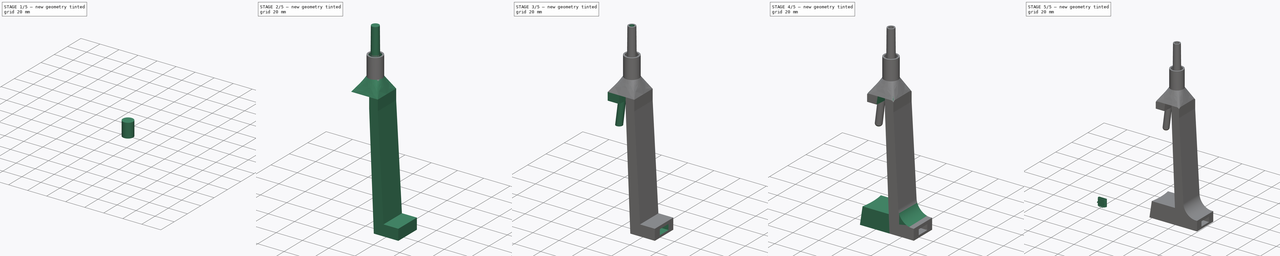
[diagram: build sequence overview — one tinted view per stage of 5, left to right]
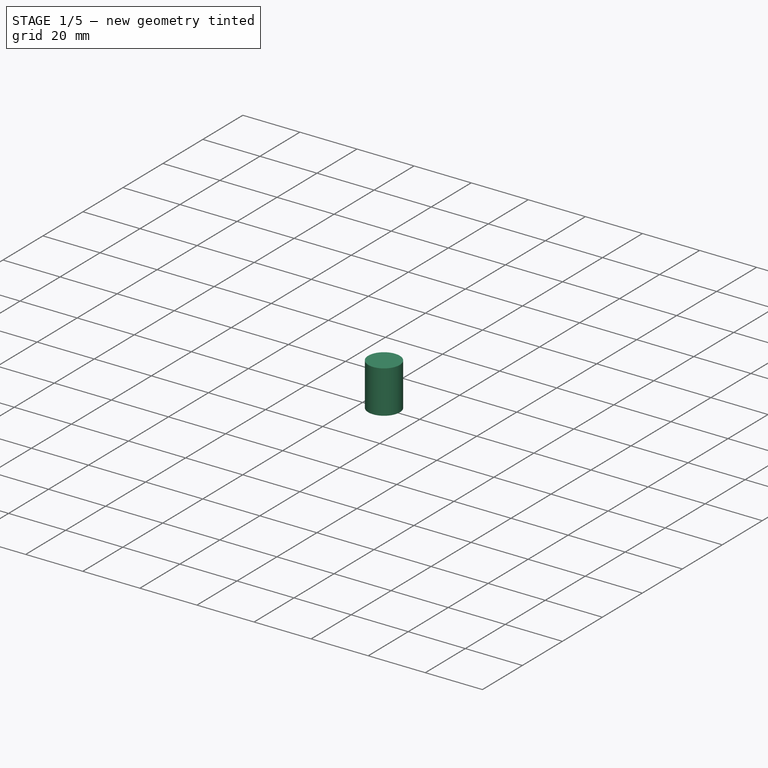
[diagram: stage 1 of 5 — iso view after this stage's code; geometry added in this stage tinted green]
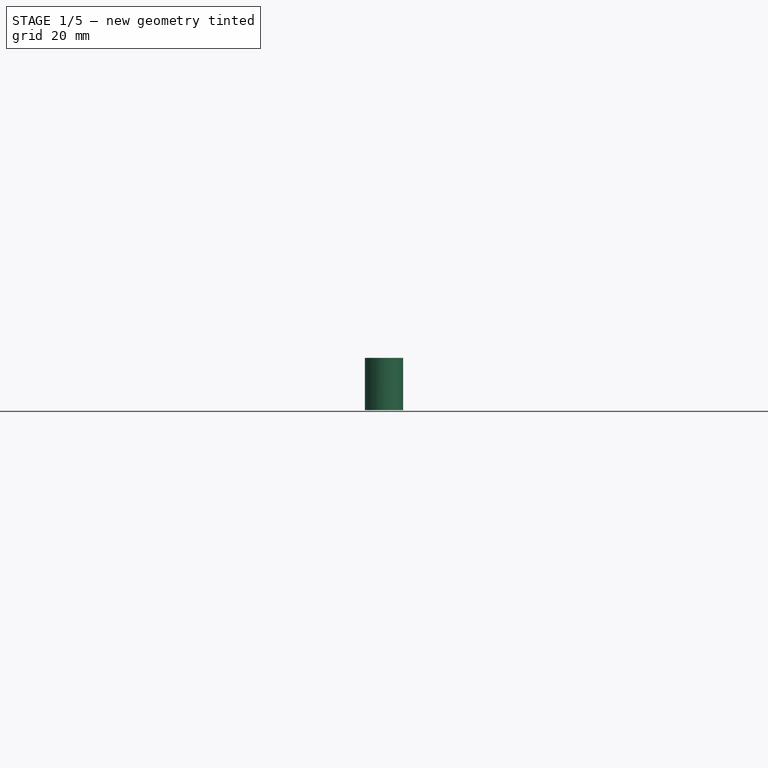
[diagram: stage 1 of 5 — front view after this stage's code; geometry added in this stage tinted green]
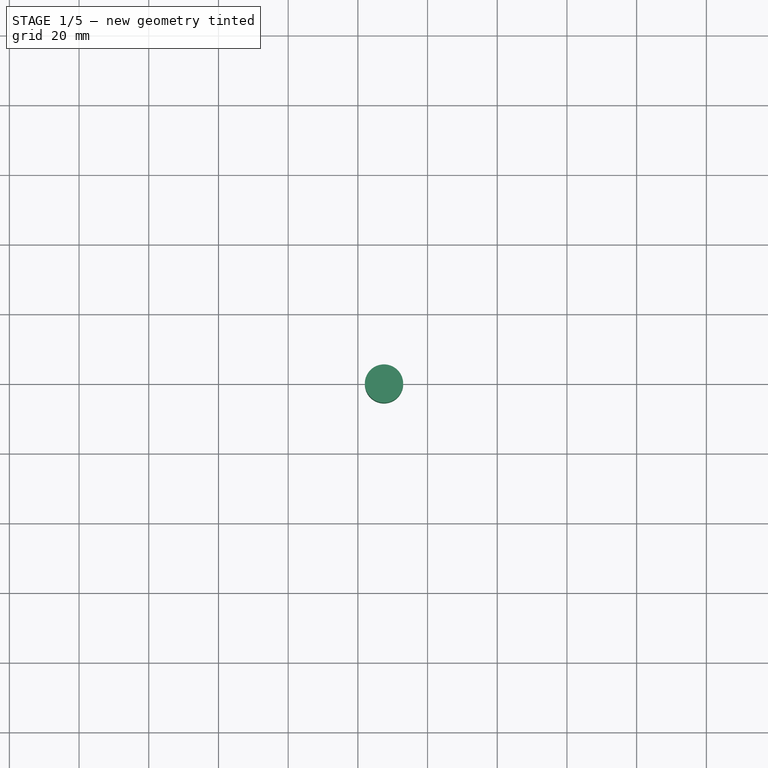
[diagram: stage 1 of 5 — top view after this stage's code; geometry added in this stage tinted green]
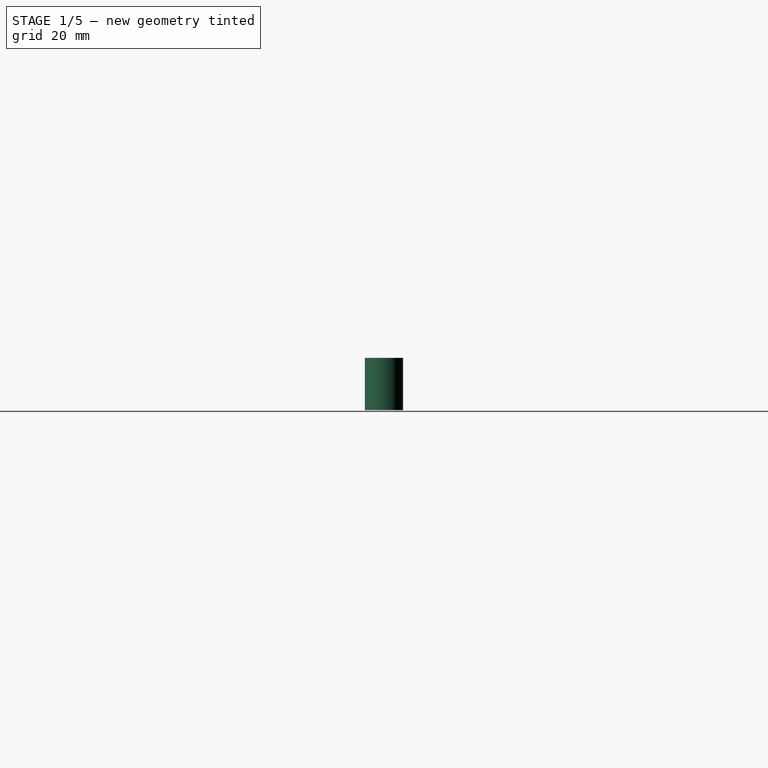
[diagram: stage 1 of 5 — right view after this stage's code; geometry added in this stage tinted green]
FCSTD DOCUMENT  (FreeCAD 0.19R19056 (Git))
Label: Supporto-B-Vaso13
License: All rights reserved
LicenseURL: http://en.wikipedia.org/wiki/All_rights_reserved
objects: Sketcher::SketchObject×32, PartDesign::Pad×12, PartDesign::AdditiveLoft×4, PartDesign::Body×3, PartDesign::Fillet×3, PartDesign::SubtractiveLoft×2, PartDesign::Pocket×2, PartDesign::SubtractivePipe×2, PartDesign::ShapeBinder×1, PartDesign::Thickness×1, PartDesign::AdditivePipe×1
note: 86 computed .brp shape members not serialized (recipe doc carries the construction recipe); baked Part::Feature solids carry a one-line shape summary decoded from their .brp

FEATURE [Sketcher::SketchObject] Sketch
  MapMode = 5
  Support = -> [XY_Plane]
  sketch-geometry (2):
    g0: Circle CenterX=0 CenterY=0 CenterZ=0 NormalX=0 NormalY=0 NormalZ=1 AngleXU=0 Radius=50
    g1: Circle CenterX=0 CenterY=0 CenterZ=0 NormalX=0 NormalY=0 NormalZ=1 AngleXU=0 Radius=50.5
  constraints (4):
    c: Coincident(g0,g-1)
    c: Coincident(g1,g0)
    c: Diameter(g0) = 100
    c: Diameter(g1) = 101
FEATURE [Sketcher::SketchObject] Sketch001
  AttachmentOffset = pos=(0,0,100) rot=(0,0,1;0rad)
  MapMode = 5
  Placement = pos=(0,0,100) rot=(0,0,1;0rad)
  Support = -> [XY_Plane]
  sketch-geometry (2):
    g0: Circle CenterX=0 CenterY=0 CenterZ=0 NormalX=0 NormalY=0 NormalZ=1 AngleXU=0 Radius=65
    g1: Circle CenterX=0 CenterY=0 CenterZ=0 NormalX=0 NormalY=0 NormalZ=1 AngleXU=0 Radius=65.5
  constraints (4):
    c: Coincident(g0,g-1)
    c: Coincident(g1,g0)
    c: Diameter(g0) = 130
    c: Diameter(g1) = 131
FEATURE [PartDesign::AdditiveLoft] AdditiveLoft
  Closed = false
  Profile = -> Sketch
  Ruled = false
  Sections = -> [Sketch001]
FEATURE [Sketcher::SketchObject] Sketch002
  MapMode = 5
  Placement = pos=(0,0,0) rot=(1,0,0;3.14159rad)
  Support = -> [AdditiveLoft]
  sketch-geometry (1):
    g0: Circle CenterX=0 CenterY=0 CenterZ=0 NormalX=0 NormalY=0 NormalZ=1 AngleXU=0 Radius=50.5
  constraints (2):
    c: Coincident(g0,g-1)
    c: Diameter(g0) = 101
FEATURE [PartDesign::Pad] Pad
  BaseFeature = -> AdditiveLoft
  Length = 1
  Length2 = 100
  Profile = -> Sketch002
  Type = 0
FEATURE [Sketcher::SketchObject] Sketch003
  MapMode = 5
  Placement = pos=(0,0,100) rot=(0,0,1;0rad)
  Support = -> [Pad]
  sketch-geometry (2):
    g0: Circle CenterX=0 CenterY=0 CenterZ=0 NormalX=0 NormalY=0 NormalZ=1 AngleXU=0 Radius=65
    g1: Circle CenterX=0 CenterY=0 CenterZ=0 NormalX=0 NormalY=0 NormalZ=1 AngleXU=0 Radius=70.5
  constraints (3):
    c: Coincident(g0,g-1)
    c: Diameter(g0) = 130
    c: Diameter(g1) = 141
FEATURE [PartDesign::Pad] Pad001
  BaseFeature = -> Pad
  Length = 1
  Length2 = 100
  Profile = -> Sketch003
  Reversed = true
  Type = 0
FEATURE [Sketcher::SketchObject] Sketch004
  MapMode = 5
  Placement = pos=(0,0,99) rot=(1,0,0;3.14159rad)
  Support = -> [Pad001]
  sketch-geometry (2):
    g0: Circle CenterX=0 CenterY=0 CenterZ=0 NormalX=0 NormalY=0 NormalZ=1 AngleXU=0 Radius=70.5
    g1: Circle CenterX=0 CenterY=0 CenterZ=0 NormalX=0 NormalY=0 NormalZ=1 AngleXU=0 Radius=70
  constraints (4):
    c: Coincident(g0,g-1)
    c: Diameter(g0) = 141
    c: Coincident(g1,g0)
    c: Diameter(g1) = 140
FEATURE [PartDesign::Pad] Pad002
  BaseFeature = -> Pad001
  Length = 5
  Length2 = 100
  Profile = -> Sketch004
  Type = 0
FEATURE [PartDesign::Body] Body  label="Vaso13"
  Group = -> [Sketch,Sketch001,AdditiveLoft,Sketch002,Pad,Sketch003,Pad001,Sketch004,Pad002]
  Origin = -> Origin
  Tip = -> Pad002
FEATURE [PartDesign::ShapeBinder] ShapeBinder
  Support = -> [Pad002]
  TraceSupport = false
FEATURE [Sketcher::SketchObject] Sketch005
  AttachmentOffset = pos=(0,0,10) rot=(0,0,1;0rad)
  MapMode = 5
  Placement = pos=(0,0,110) rot=(0,0,1;0rad)
  Support = -> [ShapeBinder]
  sketch-geometry (1):
    g0: Circle CenterX=67.5 CenterY=0 CenterZ=0 NormalX=0 NormalY=0 NormalZ=1 AngleXU=0 Radius=5.5
  constraints (3):
    c: PointOnObject(g0,g-1)
    c: DistanceX(g-1,g0) = 67.5
    c: Diameter(g0) = 11
FEATURE [PartDesign::Pad] Pad003
  Length = 15
  Length2 = 100
  Profile = -> Sketch005
  Type = 0
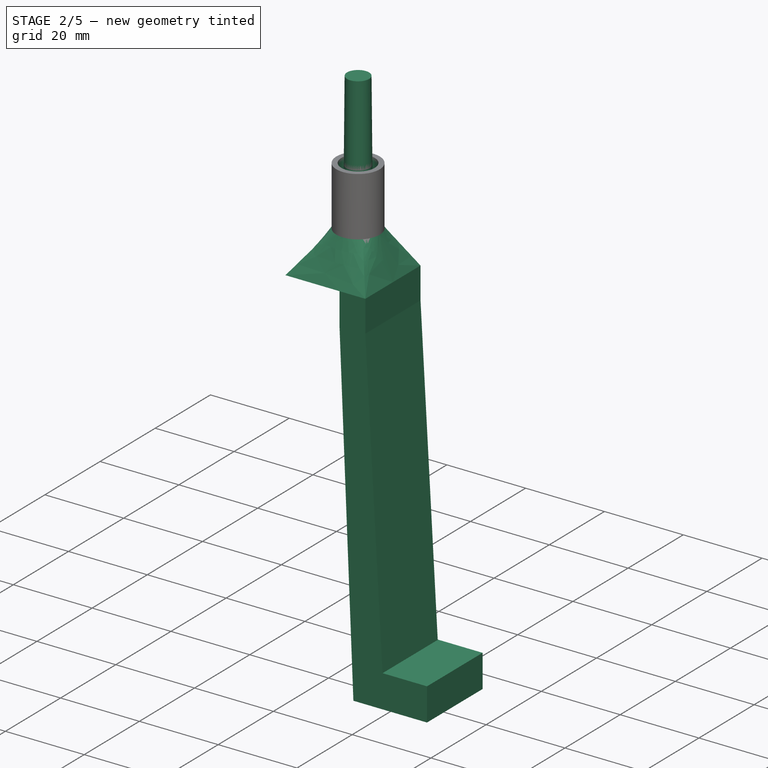
[diagram: stage 2 of 5 — iso view after this stage's code; geometry added in this stage tinted green]
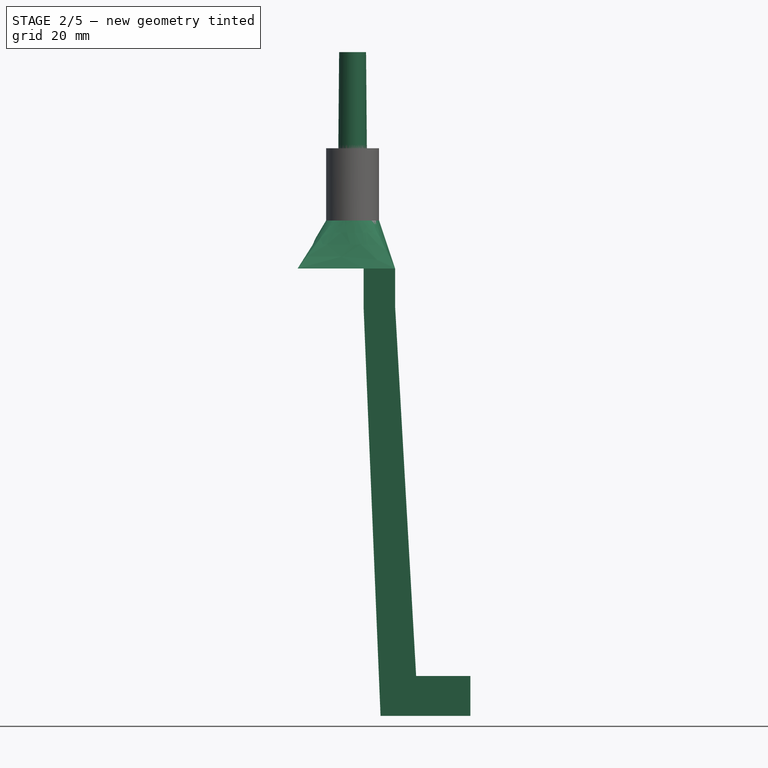
[diagram: stage 2 of 5 — front view after this stage's code; geometry added in this stage tinted green]
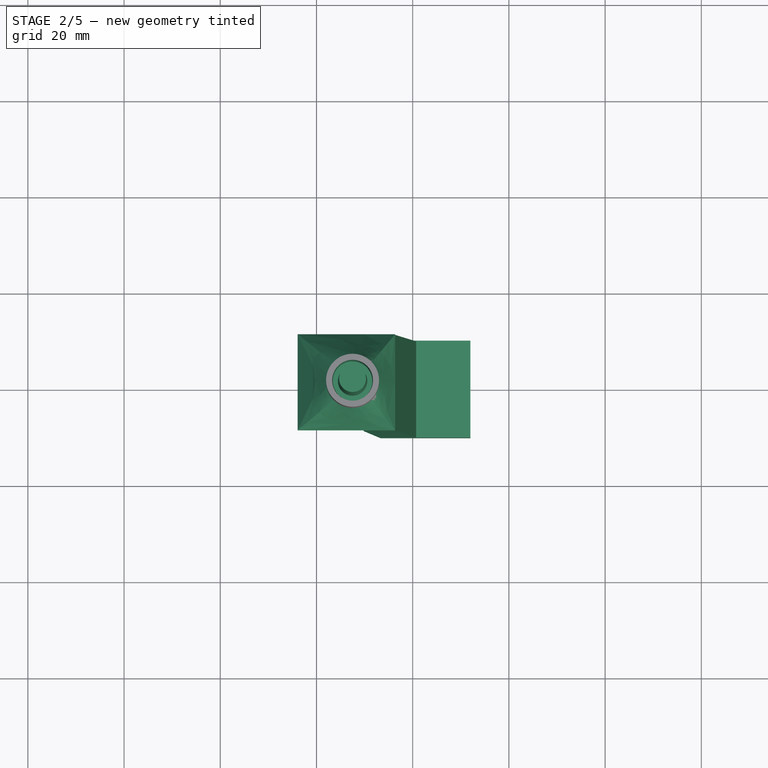
[diagram: stage 2 of 5 — top view after this stage's code; geometry added in this stage tinted green]
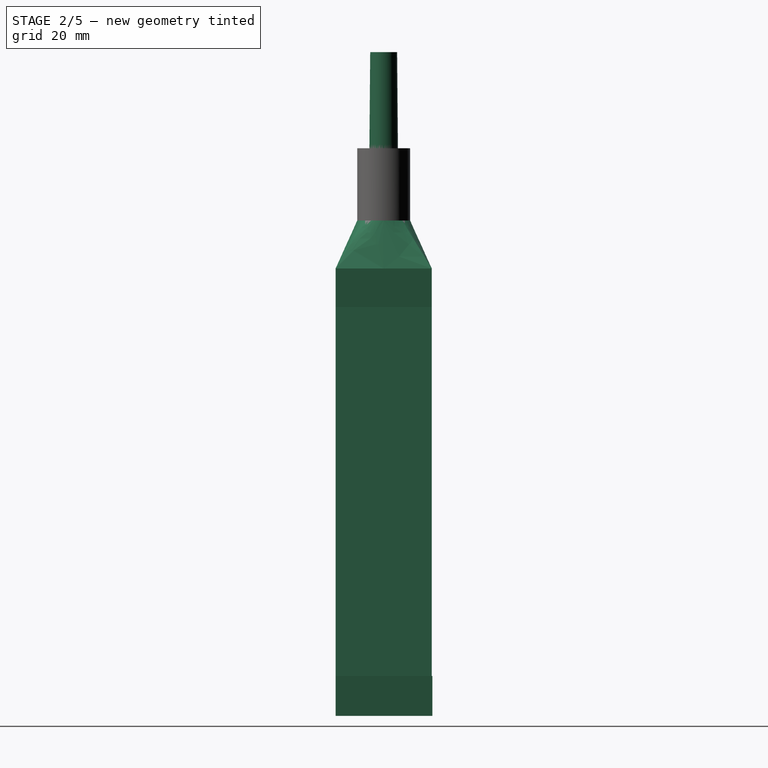
[diagram: stage 2 of 5 — right view after this stage's code; geometry added in this stage tinted green]
FEATURE [Sketcher::SketchObject] Sketch006
  ExternalGeometry = -> [Pad003]
  MapMode = 5
  Placement = pos=(0,0,125) rot=(0,0,1;0rad)
  Support = -> [Pad003]
  sketch-geometry (1):
    g0: Circle CenterX=67.5 CenterY=0 CenterZ=0 NormalX=0 NormalY=0 NormalZ=1 AngleXU=0 Radius=4.25
  constraints (2):
    c: Coincident(g0,g-3)
    c: Diameter(g0) = 8.5
FEATURE [Sketcher::SketchObject] Sketch007
  AttachmentOffset = pos=(0,0,-10) rot=(0,0,1;0rad)
  ExternalGeometry = -> [Pad003]
  MapMode = 5
  Placement = pos=(0,0,115) rot=(0,0,1;0rad)
  Support = -> [Pad003]
  sketch-geometry (1):
    g0: Circle CenterX=67.5 CenterY=0 CenterZ=0 NormalX=0 NormalY=0 NormalZ=1 AngleXU=0 Radius=4.1
  constraints (2):
    c: Coincident(g0,g-3)
    c: Diameter(g0) = 8.2
FEATURE [PartDesign::SubtractiveLoft] SubtractiveLoft
  BaseFeature = -> Pad003
  Closed = false
  Profile = -> Sketch007
  Ruled = false
  Sections = -> [Sketch006]
FEATURE [Sketcher::SketchObject] Sketch008
  ExternalGeometry = -> [SubtractiveLoft]
  MapMode = 5
  Placement = pos=(0,0,115) rot=(0,0,1;0rad)
  Support = -> [SubtractiveLoft]
  sketch-geometry (1):
    g0: Circle CenterX=67.5 CenterY=0 CenterZ=0 NormalX=0 NormalY=0 NormalZ=1 AngleXU=0 Radius=3.05
  constraints (2):
    c: Coincident(g0,g-3)
    c: Diameter(g0) = 6.1
FEATURE [Sketcher::SketchObject] Sketch009
  AttachmentOffset = pos=(0,0,30) rot=(0,0,1;0rad)
  ExternalGeometry = -> [SubtractiveLoft]
  MapMode = 5
  Placement = pos=(0,0,145) rot=(0,0,1;0rad)
  Support = -> [SubtractiveLoft]
  sketch-geometry (1):
    g0: Circle CenterX=67.5 CenterY=0 CenterZ=0 NormalX=0 NormalY=0 NormalZ=1 AngleXU=0 Radius=2.8
  constraints (2):
    c: Coincident(g0,g-3)
    c: Diameter(g0) = 5.6
FEATURE [PartDesign::AdditiveLoft] AdditiveLoft001
  BaseFeature = -> SubtractiveLoft
  Closed = false
  Profile = -> Sketch008
  Ruled = false
  Sections = -> [Sketch009]
FEATURE [Sketcher::SketchObject] Sketch010
  ExternalGeometry = -> [AdditiveLoft001]
  MapMode = 5
  Placement = pos=(0,0,145) rot=(0,0,1;0rad)
  Support = -> [AdditiveLoft001]
  sketch-geometry (1):
    g0: Circle CenterX=67.5 CenterY=0 CenterZ=0 NormalX=0 NormalY=0 NormalZ=1 AngleXU=0 Radius=1.75
  constraints (2):
    c: Coincident(g0,g-3)
    c: Diameter(g0) = 3.5
FEATURE [Sketcher::SketchObject] Sketch011
  MapMode = 5
  Placement = pos=(0,0,100) rot=(0,0,1;0rad)
  Support = -> [ShapeBinder]
  sketch-geometry (5):
    g0: LineSegment StartX=56.0678 StartY=10 StartZ=0 EndX=76.3477 EndY=10 EndZ=0
    g1: LineSegment StartX=76.3477 StartY=10 StartZ=0 EndX=76.3477 EndY=-10 EndZ=0
    g2: LineSegment StartX=76.3477 StartY=-10 StartZ=0 EndX=56.0678 EndY=-10 EndZ=0
    g3: LineSegment StartX=56.0678 StartY=-10 StartZ=0 EndX=56.0678 EndY=10 EndZ=0
    g4: GeomPoint X=56.0678 Y=-1e-16 Z=0
  constraints (11):
    c: Coincident(g0,g1)
    c: Coincident(g1,g2)
    c: Coincident(g2,g3)
    c: Coincident(g3,g0)
    c: Horizontal(g0)
    c: Horizontal(g2)
    c: Vertical(g1)
    c: Vertical(g3)
    c: DistanceY(g1,g1) = 20
    c: PointOnObject(g4,g-1)
    c: Symmetric(g2,g0,g4)
FEATURE [Sketcher::SketchObject] Sketch012
  ExternalGeometry = -> [AdditiveLoft001]
  MapMode = 5
  Placement = pos=(0,0,110) rot=(1,0,0;3.14159rad)
  Support = -> [AdditiveLoft001]
  sketch-geometry (1):
    g0: Circle CenterX=67.5 CenterY=0 CenterZ=0 NormalX=0 NormalY=0 NormalZ=1 AngleXU=0 Radius=5.5
  constraints (2):
    c: Coincident(g0,g-3)
    c: Equal(g0,g-3)
FEATURE [PartDesign::AdditiveLoft] AdditiveLoft002
  BaseFeature = -> AdditiveLoft001
  Closed = false
  Profile = -> Sketch012
  Ruled = false
  Sections = -> [Sketch011]
FEATURE [PartDesign::Body] Body002  label="MicroUSB"
  Group = -> [Sketch015,Pad004,Thickness,Sketch016,Pad005,Sketch017,Pad006,Sketch018,Pad007]
  Origin = -> Origin002
  Placement = pos=(86,-3,12) rot=(0.57735,0.57735,0.57735;2.0944rad)
  Tip = -> Pad007
FEATURE [Sketcher::SketchObject] Sketch019
  ExternalGeometry = -> [AdditiveLoft002,ShapeBinder]
  MapMode = 5
  Placement = pos=(0,0,100) rot=(1,0,0;3.14159rad)
  Support = -> [AdditiveLoft002]
  sketch-geometry (4):
    g0: ArcOfCircle CenterX=0 CenterY=0 CenterZ=0 NormalX=0 NormalY=0 NormalZ=1 AngleXU=0 Radius=70.5 StartAngle=6.14086 EndAngle=6.42551
    g1: LineSegment StartX=69.7872 StartY=10 StartZ=0 EndX=76.3477 EndY=10 EndZ=0
    g2: LineSegment StartX=76.3477 StartY=10 StartZ=0 EndX=76.3477 EndY=-10 EndZ=0
    g3: LineSegment StartX=76.3477 StartY=-10 StartZ=0 EndX=69.7872 EndY=-10 EndZ=0
  constraints (10):
    c: Coincident(g0,g-1)
    c: PointOnObject(g0,g-5)
    c: PointOnObject(g0,g-4)
    c: PointOnObject(g0,g-3)
    c: Coincident(g0,g1)
    c: Coincident(g1,g2)
    c: Coincident(g2,g3)
    c: Coincident(g3,g0)
    c: Coincident(g1,g-3)
    c: Coincident(g-4,g2)
FEATURE [PartDesign::Pad] Pad008
  BaseFeature = -> AdditiveLoft002
  Length = 8
  Length2 = 100
  Profile = -> Sketch019
  Type = 0
FEATURE [Sketcher::SketchObject] Sketch020
  AttachmentOffset = pos=(-5,0,85) rot=(0,0,1;0rad)
  ExternalGeometry = -> [Pad008]
  MapMode = 5
  Placement = pos=(-5,0,7) rot=(1,0,0;3.14159rad)
  Support = -> [Pad008]
  sketch-geometry (6):
    g0: LineSegment StartX=78.3147 StartY=10 StartZ=0 EndX=86.1863 EndY=10 EndZ=0
    g1: LineSegment StartX=86.1863 StartY=10 StartZ=0 EndX=86.1863 EndY=-10 EndZ=0
    g2: LineSegment StartX=86.1863 StartY=-10 StartZ=0 EndX=78.3147 EndY=-10 EndZ=0
    g3: LineSegment StartX=78.3147 StartY=-10 StartZ=0 EndX=78.3147 EndY=10 EndZ=0
    g4: LineSegment [constr] StartX=81.3477 StartY=10 StartZ=0 EndX=78.3147 EndY=10 EndZ=0
    g5: LineSegment [constr] StartX=81.3477 StartY=-10 StartZ=0 EndX=78.3147 EndY=-10 EndZ=0
  constraints (14):
    c: Coincident(g0,g1)
    c: Coincident(g1,g2)
    c: Coincident(g2,g3)
    c: Coincident(g3,g0)
    c: Horizontal(g0)
    c: Horizontal(g2)
    c: Vertical(g1)
    c: Vertical(g3)
    c: Equal(g-5,g1)
    c: Coincident(g4,g-5)
    c: Coincident(g4,g0)
    c: Horizontal(g4)
    c: Coincident(g5,g-5)
    c: Coincident(g5,g2)
FEATURE [Sketcher::SketchObject] Sketch021
  ExternalGeometry = -> [Pad008,ShapeBinder]
  MapMode = 5
  Placement = pos=(0,0,92) rot=(1,0,0;3.14159rad)
  Support = -> [Pad008]
  sketch-geometry (4):
    g0: ArcOfCircle CenterX=0 CenterY=0 CenterZ=0 NormalX=0 NormalY=0 NormalZ=1 AngleXU=0 Radius=70.5 StartAngle=6.14086 EndAngle=6.42551
    g1: LineSegment StartX=69.7872 StartY=10 StartZ=0 EndX=76.3477 EndY=10 EndZ=0
    g2: LineSegment StartX=76.3477 StartY=10 StartZ=0 EndX=76.3477 EndY=-10 EndZ=0
    g3: LineSegment StartX=76.3477 StartY=-10 StartZ=0 EndX=69.7872 EndY=-10 EndZ=0
  constraints (10):
    c: Coincident(g0,g-1)
    c: PointOnObject(g0,g-5)
    c: PointOnObject(g0,g-4)
    c: Coincident(g0,g1)
    c: Coincident(g1,g2)
    c: Coincident(g2,g3)
    c: Coincident(g3,g0)
    c: PointOnObject(g0,g-3)
    c: Coincident(g-3,g1)
    c: Coincident(g-4,g2)
FEATURE [PartDesign::AdditiveLoft] AdditiveLoft003
  BaseFeature = -> Pad008
  Closed = false
  Profile = -> Sketch021
  Ruled = false
  Sections = -> [Sketch020]
FEATURE [Sketcher::SketchObject] Sketch022
  AttachmentOffset = pos=(0,0,80) rot=(0,0,1;0rad)
  ExternalGeometry = -> [AdditiveLoft003]
  MapMode = 5
  Placement = pos=(80,-1.78e-14,1.78e-14) rot=(0.57735,0.57735,0.57735;2.0944rad)
  Support = -> [YZ_Plane001]
  sketch-geometry (4):
    g0: LineSegment StartX=-10 StartY=7 StartZ=0 EndX=10.1356 EndY=7 EndZ=0
    g1: LineSegment StartX=10.1356 StartY=7 StartZ=0 EndX=10.1356 EndY=15.3041 EndZ=0
    g2: LineSegment StartX=10.1356 StartY=15.3041 StartZ=0 EndX=-10 EndY=15.3041 EndZ=0
    g3: LineSegment StartX=-10 StartY=15.3041 StartZ=0 EndX=-10 EndY=7 EndZ=0
  constraints (10):
    c: Coincident(g0,g1)
    c: Coincident(g1,g2)
    c: Coincident(g2,g3)
    c: Coincident(g3,g0)
    c: Horizontal(g0)
    c: Horizontal(g2)
    c: Vertical(g1)
    c: Vertical(g3)
    c: Coincident(g0,g-3)
    c: PointOnObject(g1,g-4)
FEATURE [PartDesign::Pad] Pad009
  BaseFeature = -> AdditiveLoft003
  Length = 12
  Length2 = 100
  Profile = -> Sketch022
  Type = 0
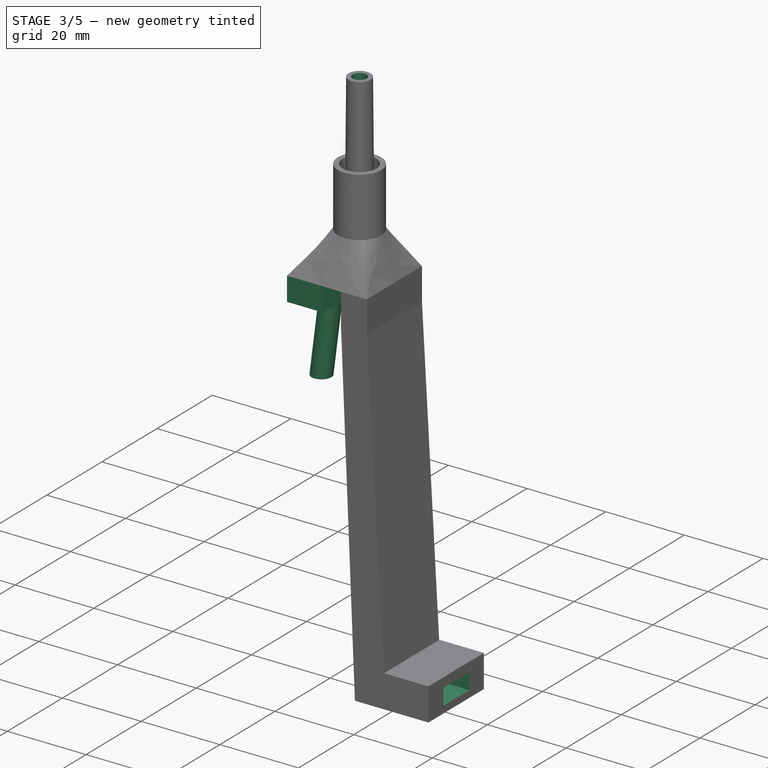
[diagram: stage 3 of 5 — iso view after this stage's code; geometry added in this stage tinted green]
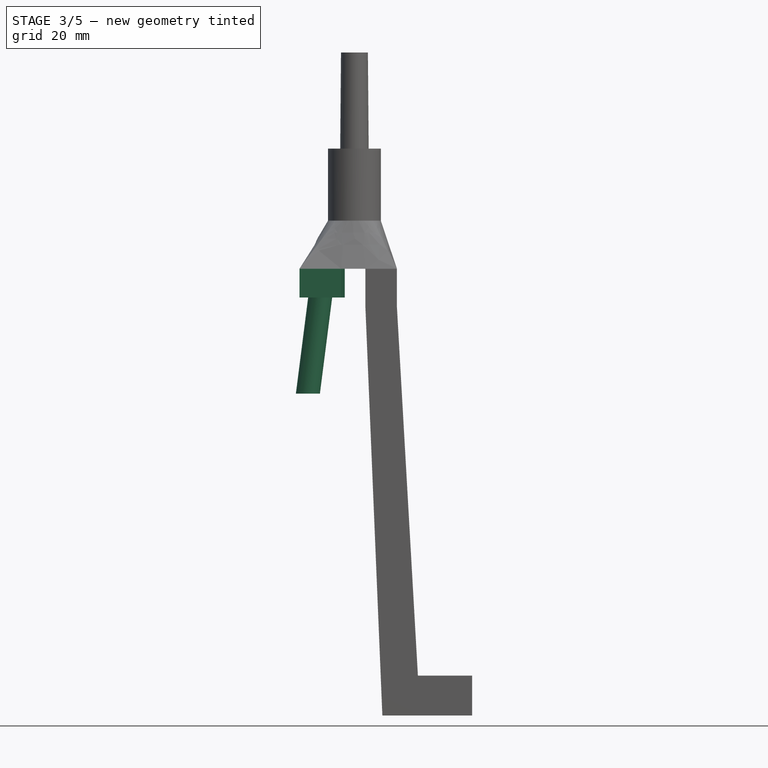
[diagram: stage 3 of 5 — front view after this stage's code; geometry added in this stage tinted green]
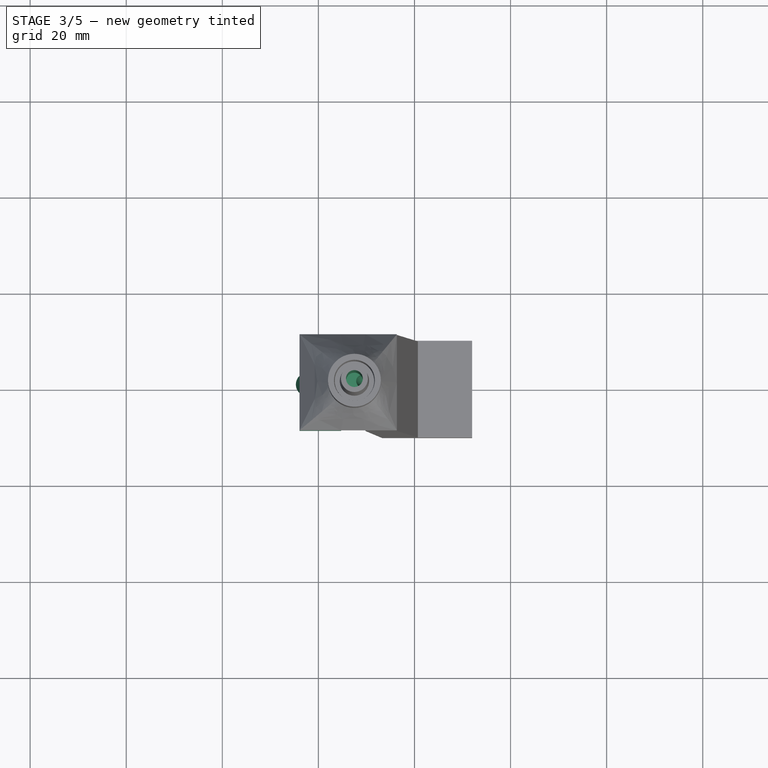
[diagram: stage 3 of 5 — top view after this stage's code; geometry added in this stage tinted green]
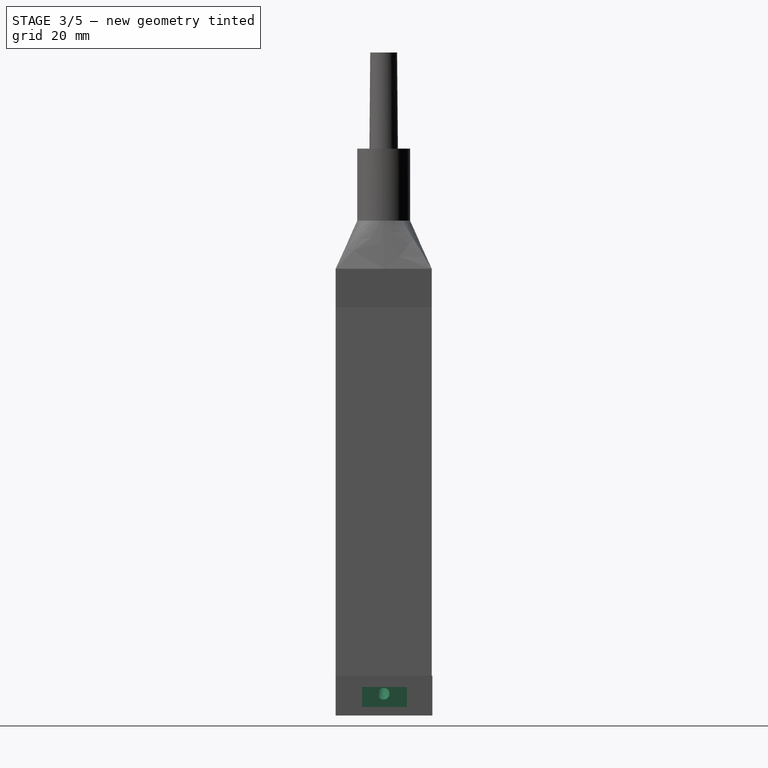
[diagram: stage 3 of 5 — right view after this stage's code; geometry added in this stage tinted green]
FEATURE [Sketcher::SketchObject] Sketch023
  MapMode = 5
  Placement = pos=(92,0,0) rot=(0.57735,0.57735,0.57735;2.0944rad)
  Support = -> [Pad009]
  sketch-geometry (4):
    g0: LineSegment StartX=-4.51885 StartY=12.9162 StartZ=0 EndX=4.86308 EndY=12.9162 EndZ=0
    g1: LineSegment StartX=4.86308 StartY=12.9162 StartZ=0 EndX=4.86308 EndY=8.76491 EndZ=0
    g2: LineSegment StartX=4.86308 StartY=8.76491 StartZ=0 EndX=-4.51885 EndY=8.76491 EndZ=0
    g3: LineSegment StartX=-4.51885 StartY=8.76491 StartZ=0 EndX=-4.51885 EndY=12.9162 EndZ=0
  constraints (8):
    c: Coincident(g0,g1)
    c: Coincident(g1,g2)
    c: Coincident(g2,g3)
    c: Coincident(g3,g0)
    c: Horizontal(g0)
    c: Horizontal(g2)
    c: Vertical(g1)
    c: Vertical(g3)
FEATURE [PartDesign::Pocket] Pocket
  BaseFeature = -> Pad009
  Length = 8
  Length2 = 100
  Profile = -> Sketch023
  Type = 0
FEATURE [Sketcher::SketchObject] Sketch024
  ExternalGeometry = -> [Pocket,ShapeBinder]
  MapMode = 5
  Placement = pos=(0,0,100) rot=(1,0,0;3.14159rad)
  Support = -> [Pocket]
  sketch-geometry (4):
    g0: LineSegment StartX=64.7321 StartY=10 StartZ=0 EndX=56.0678 EndY=10 EndZ=0
    g1: LineSegment StartX=56.0678 StartY=10 StartZ=0 EndX=56.0678 EndY=-10 EndZ=0
    g2: LineSegment StartX=56.0678 StartY=-10 StartZ=0 EndX=64.7321 EndY=-10 EndZ=0
    g3: ArcOfCircle CenterX=0 CenterY=0 CenterZ=0 NormalX=0 NormalY=0 NormalZ=1 AngleXU=0 Radius=65.5 StartAngle=6.12991 EndAngle=6.43646
  constraints (10):
    c: Coincident(g0,g1)
    c: Coincident(g1,g2)
    c: Coincident(g3,g-1)
    c: Coincident(g3,g0)
    c: Coincident(g3,g2)
    c: PointOnObject(g0,g-5)
    c: Coincident(g0,g-3)
    c: Coincident(g1,g-4)
    c: PointOnObject(g2,g-4)
    c: PointOnObject(g0,g-3)
FEATURE [PartDesign::Pad] Pad010
  BaseFeature = -> Pocket
  Length = 6
  Length2 = 100
  Profile = -> Sketch024
  Type = 0
FEATURE [Sketcher::SketchObject] Sketch025
  MapMode = 5
  Placement = pos=(0,0,94) rot=(1,0,0;3.14159rad)
  Support = -> [Pad010]
  sketch-geometry (1):
    g0: Circle CenterX=60.3649 CenterY=0 CenterZ=0 NormalX=0 NormalY=0 NormalZ=1 AngleXU=0 Radius=2.5
  constraints (2):
    c: PointOnObject(g0,g-1)
    c: Diameter(g0) = 5
FEATURE [Sketcher::SketchObject] Sketch026
  MapMode = 5
  Placement = pos=(0,0,74) rot=(1,0,0;3.14159rad)
  sketch-geometry (1):
    g0: Circle CenterX=57.8924 CenterY=0 CenterZ=0 NormalX=0 NormalY=0 NormalZ=1 AngleXU=0 Radius=1.5
  constraints (2):
    c: Diameter(g0) = 3
    c: PointOnObject(g0,g-1)
FEATURE [Sketcher::SketchObject] Sketch027
  AttachmentOffset = pos=(0,0,-10) rot=(0,0,1;0rad)
  MapMode = 5
  Placement = pos=(0,3.38e-14,-2.2e-15) rot=(0,0.707107,0.707107;3.14159rad)
  sketch-geometry (11):
    g0-g4: Circle [constr] x5 (B-spline internal-alignment scaffolding for g5; pole/knot coordinates omitted)
    g5: BSplineCurve PolesCount=5 KnotsCount=3 Degree=3 IsPeriodic=0
    g6: GeomPoint [constr] X=-60.0881 Y=94.1318 Z=0
    g7: GeomPoint [constr] X=-66.1316 Y=106.557 Z=0
    g8: GeomPoint [constr] X=-67.24 Y=117.389 Z=0
    g9: LineSegment StartX=-60.0881 StartY=94.1318 StartZ=0 EndX=-57.6393 EndY=74.0407 EndZ=0
    g10: GeomPoint X=-60.4 Y=94 Z=0
  constraints (7):
    c: Radius(g0) = 1
    c: Equal(g0, g1-g4) x4
    c: InternalAlignment(g0-g4 -> g5) x5
    c: InternalAlignment(g6,g5)
    c: InternalAlignment(g7,g5)
    c: InternalAlignment(g8,g5)
    c: Coincident(g9,g5)
FEATURE [PartDesign::SubtractivePipe] SubtractivePipe001
  AuxilleryCurvelinear = true
  AuxillerySpineTangent = false
  BaseFeature = -> Pad010
  Binormal = (0,0,0)
  Mode = 0
  Profile = -> Sketch013
  Spine = -> Sketch014
  SpineTangent = false
  Transformation = 0
  Transition = 0
FEATURE [PartDesign::Pocket] Pocket001
  BaseFeature = -> SubtractivePipe001
  Length = 30
  Length2 = 100
  Profile = -> Sketch010
  Type = 0
FEATURE [Sketcher::SketchObject] Sketch028
  AttachmentOffset = pos=(0,0,-10) rot=(0,0,1;0rad)
  ExternalGeometry = -> [Pocket001]
  MapMode = 5
  Placement = pos=(0,1.261e-13,-2.2e-15) rot=(1,0,0;1.5708rad)
  Support = -> [Pocket001]
  sketch-geometry (1):
    g0: LineSegment StartX=60.6115 StartY=96.6125 StartZ=0 EndX=57.7278 EndY=74 EndZ=0
  constraints (1):
    c: DistanceY(g0,g-3) = 20
FEATURE [PartDesign::AdditivePipe] AdditivePipe
  AuxilleryCurvelinear = true
  AuxillerySpineTangent = false
  BaseFeature = -> Pocket001
  Binormal = (0,0,0)
  Mode = 0
  Profile = -> Sketch025
  Spine = -> Sketch028
  SpineTangent = false
  Transformation = 0
  Transition = 0
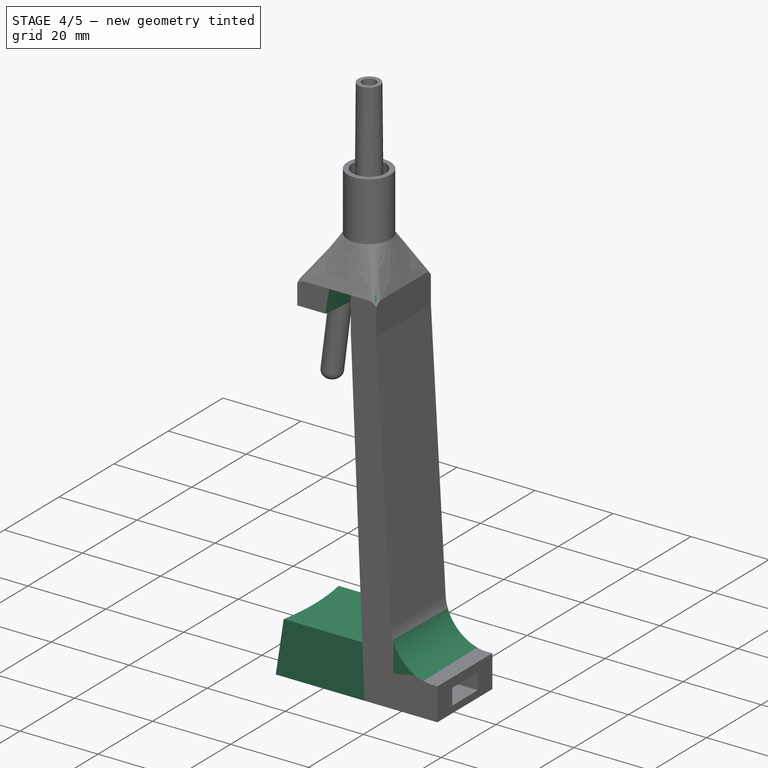
[diagram: stage 4 of 5 — iso view after this stage's code; geometry added in this stage tinted green]
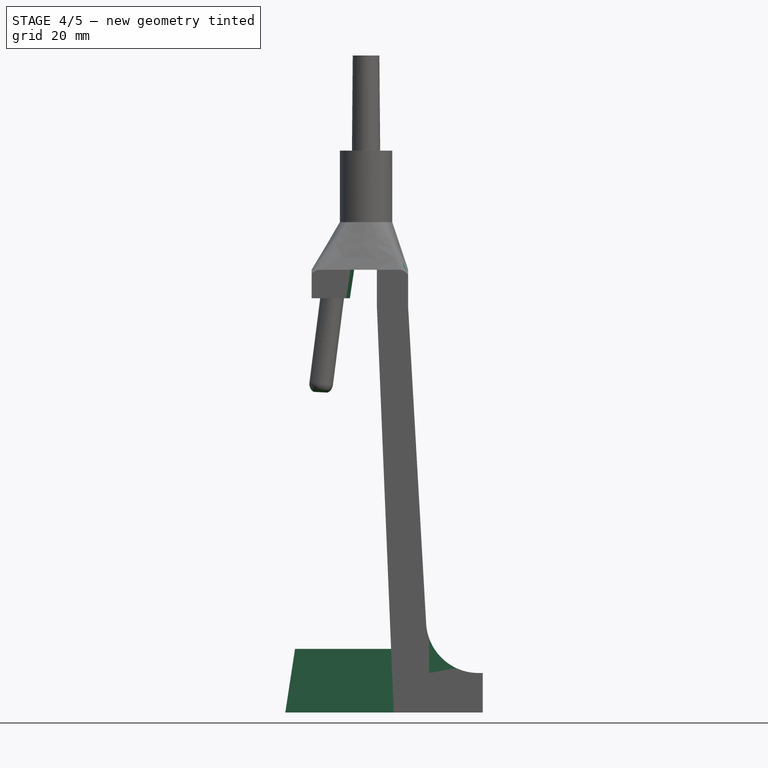
[diagram: stage 4 of 5 — front view after this stage's code; geometry added in this stage tinted green]
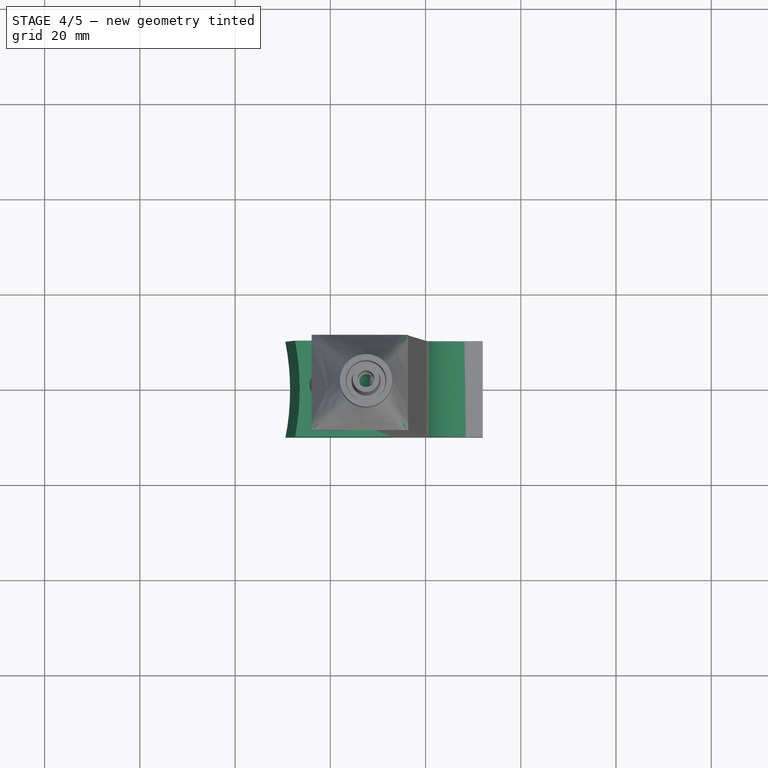
[diagram: stage 4 of 5 — top view after this stage's code; geometry added in this stage tinted green]
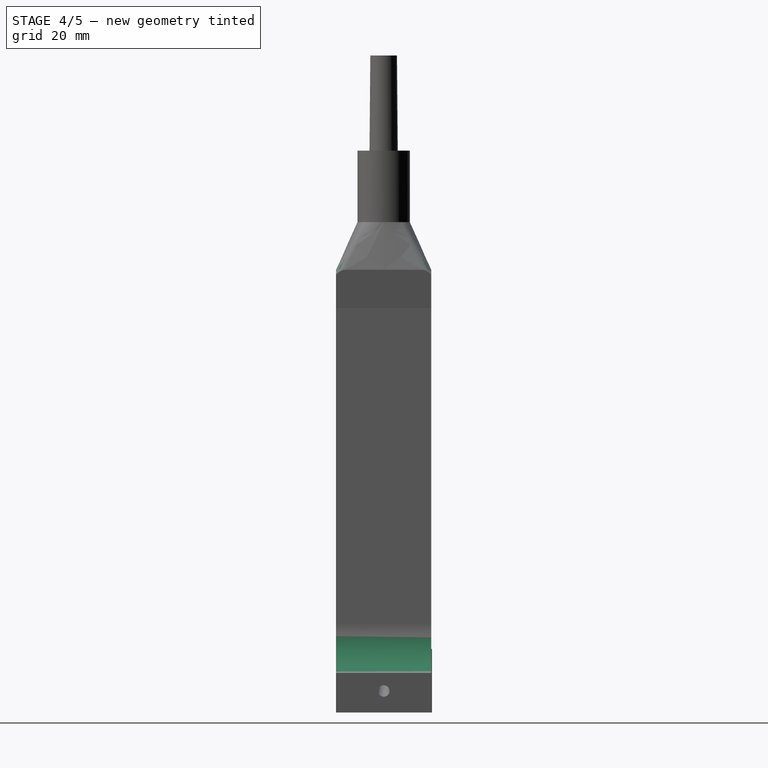
[diagram: stage 4 of 5 — right view after this stage's code; geometry added in this stage tinted green]
FEATURE [PartDesign::Fillet] Fillet
  Base = -> AdditivePipe [Edge61]
  BaseFeature = -> AdditivePipe
  Radius = 2
FEATURE [PartDesign::SubtractivePipe] SubtractivePipe
  AuxilleryCurvelinear = true
  AuxillerySpineTangent = false
  BaseFeature = -> Fillet
  Binormal = (0,0,0)
  Mode = 0
  Profile = -> Sketch026
  Spine = -> Sketch027
  SpineTangent = false
  Transformation = 0
  Transition = 0
FEATURE [PartDesign::Fillet] Fillet001
  Base = -> SubtractivePipe [Edge34,Edge32,Edge28,Edge25]
  BaseFeature = -> SubtractivePipe
  Radius = 2
FEATURE [Sketcher::SketchObject] Sketch029
  AttachmentOffset = pos=(0,0,-18) rot=(0,0,1;0rad)
  ExternalGeometry = -> [Fillet001]
  MapMode = 5
  Placement = pos=(74,0,0) rot=(0.57735,0.57735,0.57735;2.0944rad)
  Support = -> [Fillet001]
  sketch-geometry (4):
    g0: LineSegment StartX=-10 StartY=7 StartZ=0 EndX=10.1451 EndY=7 EndZ=0
    g1: LineSegment StartX=10.1451 StartY=7 StartZ=0 EndX=10.1451 EndY=20.3832 EndZ=0
    g2: LineSegment StartX=10.1451 StartY=20.3832 StartZ=0 EndX=-10 EndY=20.3832 EndZ=0
    g3: LineSegment StartX=-10 StartY=20.3832 StartZ=0 EndX=-10 EndY=7 EndZ=0
  constraints (9):
    c: Coincident(g0,g1)
    c: Coincident(g1,g2)
    c: Coincident(g2,g3)
    c: Coincident(g3,g0)
    c: Horizontal(g0)
    c: Horizontal(g2)
    c: Vertical(g1)
    c: Vertical(g3)
    c: Coincident(g0,g-3)
FEATURE [PartDesign::Pad] Pad011
  BaseFeature = -> Fillet001
  Length = 30
  Length2 = 100
  Profile = -> Sketch029
  Reversed = true
  Type = 0
FEATURE [Sketcher::SketchObject] Sketch030
  MapMode = 5
  Placement = pos=(0,0,100) rot=(0,0,1;0rad)
  Support = -> [ShapeBinder]
  sketch-geometry (2):
    g0: Circle CenterX=0 CenterY=0 CenterZ=0 NormalX=0 NormalY=0 NormalZ=1 AngleXU=0 Radius=65.5
    g1: Circle CenterX=0 CenterY=0 CenterZ=0 NormalX=0 NormalY=0 NormalZ=1 AngleXU=0 Radius=65
  constraints (4):
    c: Coincident(g0,g-1)
    c: Diameter(g0) = 131
    c: Coincident(g1,g0)
    c: Diameter(g1) = 130
FEATURE [Sketcher::SketchObject] Sketch031
  AttachmentOffset = pos=(0,0,-100) rot=(0,0,1;0rad)
  MapMode = 5
  Placement = pos=(0,0,-2.84e-14) rot=(0,0,1;0rad)
  Support = -> [ShapeBinder]
  sketch-geometry (2):
    g0: Circle CenterX=0 CenterY=0 CenterZ=0 NormalX=0 NormalY=0 NormalZ=1 AngleXU=0 Radius=50.5
    g1: Circle CenterX=0 CenterY=0 CenterZ=0 NormalX=0 NormalY=0 NormalZ=1 AngleXU=0 Radius=50
  constraints (4):
    c: Coincident(g0,g-1)
    c: Diameter(g0) = 101
    c: Coincident(g1,g0)
    c: Diameter(g1) = 100
FEATURE [PartDesign::SubtractiveLoft] SubtractiveLoft001
  BaseFeature = -> Pad011
  Closed = false
  Profile = -> Sketch030
  Ruled = false
  Sections = -> [Sketch031]
FEATURE [PartDesign::Fillet] Fillet002
  Base = -> SubtractiveLoft001 [Edge78]
  BaseFeature = -> SubtractiveLoft001
  Radius = 11
FEATURE [PartDesign::Body] Body001  label="Supporto"
  Group = -> [ShapeBinder,Sketch005,Pad003,Sketch006,Sketch007,SubtractiveLoft,Sketch008,Sketch009,AdditiveLoft001,Sketch010,Sketch011,Sketch012,AdditiveLoft002,Sketch013,Sketch014,Sketch019,Pad008,Sketch020,Sketch021,AdditiveLoft003,Sketch022,Pad009,Sketch023,Pocket,Sketch024,Pad010,Sketch025,Sketch026,Sketch027,SubtractivePipe001,Pocket001,Sketch028,AdditivePipe,Fillet,SubtractivePipe,Fillet001,Sketch029,+5 more]
  Origin = -> Origin001
  Tip = -> Fillet002
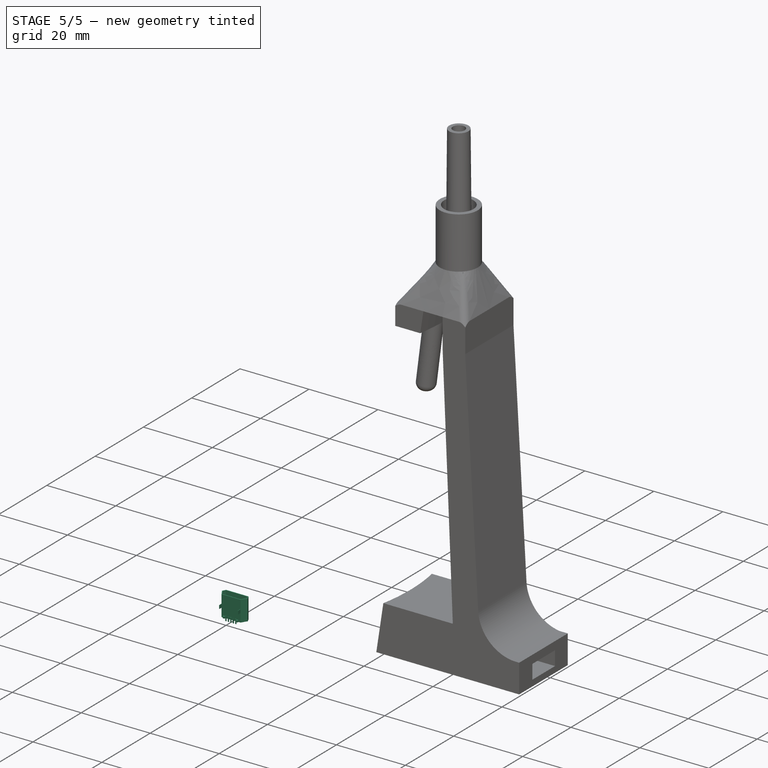
[diagram: stage 5 of 5 — iso view after this stage's code; geometry added in this stage tinted green]
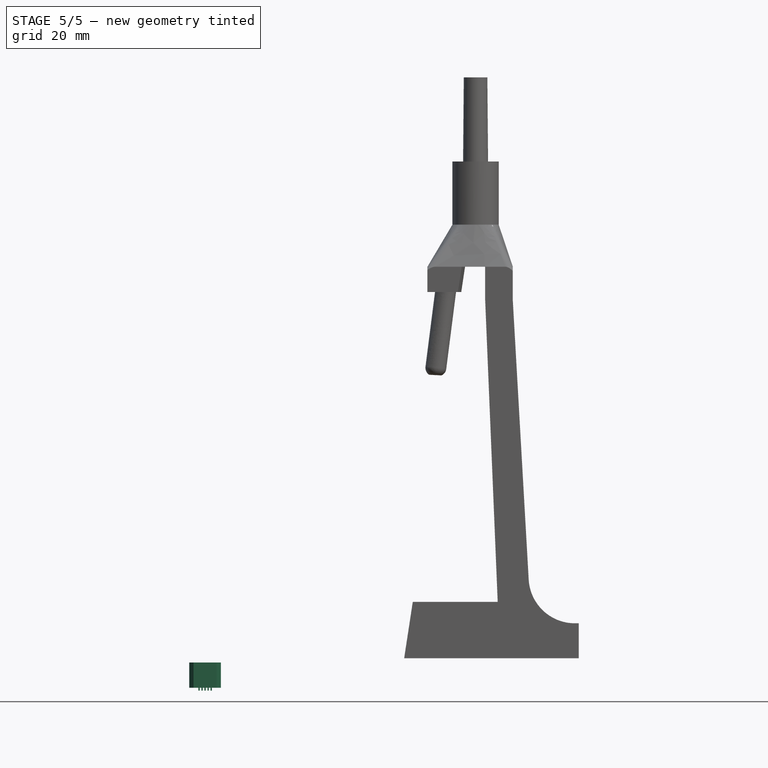
[diagram: stage 5 of 5 — front view after this stage's code; geometry added in this stage tinted green]
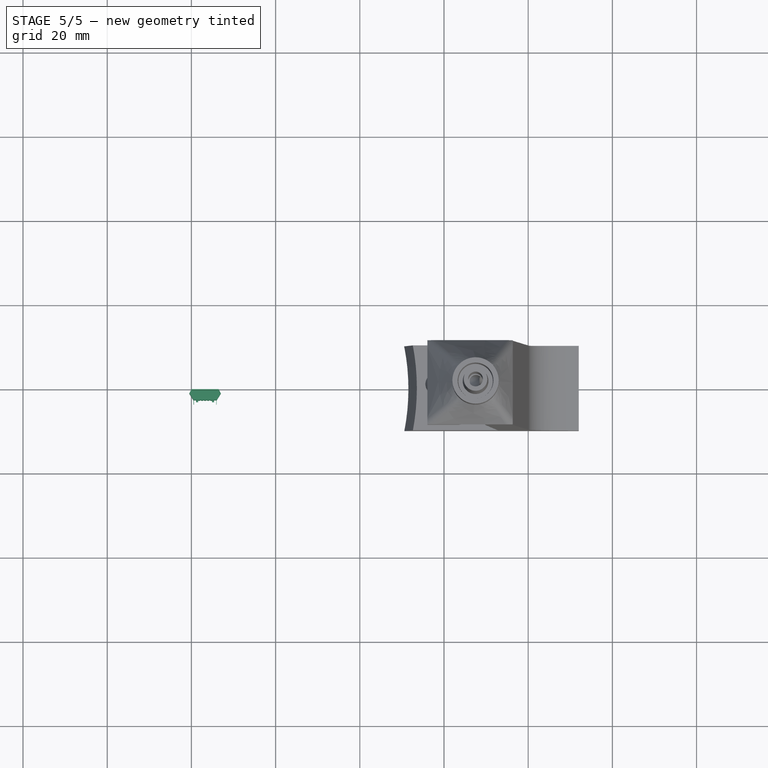
[diagram: stage 5 of 5 — top view after this stage's code; geometry added in this stage tinted green]
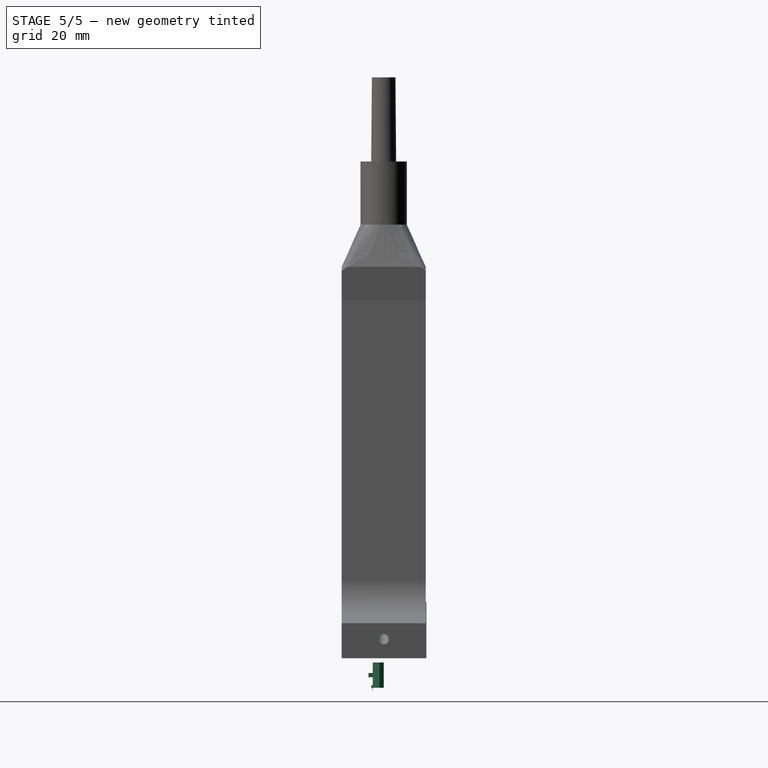
[diagram: stage 5 of 5 — right view after this stage's code; geometry added in this stage tinted green]
FEATURE [Sketcher::SketchObject] Sketch013
  MapMode = 5
  Placement = pos=(0,0,100) rot=(1,0,0;3.14159rad)
  Support = -> [AdditiveLoft002]
  sketch-geometry (1):
    g0: Circle CenterX=73.4453 CenterY=0 CenterZ=0 NormalX=0 NormalY=0 NormalZ=1 AngleXU=0 Radius=1.25
  constraints (2):
    c: PointOnObject(g0,g-1)
    c: Diameter(g0) = 2.5
FEATURE [Sketcher::SketchObject] Sketch014
  MapMode = 5
  Placement = pos=(0,0,0) rot=(1,0,0;1.5708rad)
  Support = -> [XZ_Plane001]
  sketch-geometry (14):
    g0-g6: Circle [constr] x7 (B-spline internal-alignment scaffolding for g7; pole/knot coordinates omitted)
    g7: BSplineCurve PolesCount=7 KnotsCount=5 Degree=3 IsPeriodic=0
    g8-g12: GeomPoint [constr] x5 (B-spline internal-alignment scaffolding for g7; pole/knot coordinates omitted)
    g13: GeomPoint X=82.425 Y=0 Z=0
  constraints (6):
    c: Radius(g0) = 1
    c: Equal(g0, g1-g6) x6
    c: InternalAlignment(g0-g6 -> g7) x7
    c: InternalAlignment(g8-g12 -> g7) x5
    c: PointOnObject(g13,g-1)
    c: DistanceY(g13,g7) = 10
FEATURE [Sketcher::SketchObject] Sketch015
  MapMode = 5
  Support = -> [XY_Plane002]
  sketch-geometry (12):
    g0: LineSegment StartX=0 StartY=0 StartZ=0 EndX=6.5 EndY=0 EndZ=0
    g1: LineSegment [constr] StartX=-0.5 StartY=-1 StartZ=0 EndX=7 EndY=-1 EndZ=0
    g2: LineSegment StartX=0.5 StartY=-2.6 StartZ=0 EndX=6 EndY=-2.6 EndZ=0
    g3: LineSegment StartX=0 StartY=0 StartZ=0 EndX=-0.5 EndY=-1 EndZ=0
    g4: LineSegment StartX=-0.5 StartY=-1 StartZ=0 EndX=0.5 EndY=-2.6 EndZ=0
    g5: LineSegment StartX=6 StartY=-2.6 StartZ=0 EndX=7 EndY=-1 EndZ=0
    g6: LineSegment StartX=7 StartY=-1 StartZ=0 EndX=6.5 EndY=0 EndZ=0
    g7: GeomPoint X=0 Y=0 Z=0
    g8: LineSegment [constr] StartX=0 StartY=0 StartZ=0 EndX=0 EndY=-4.23763 EndZ=0
    g9: LineSegment [constr] StartX=6.5 StartY=0 StartZ=0 EndX=6.5 EndY=-3.6855 EndZ=0
    g10: LineSegment [constr] StartX=6 StartY=-2.6 StartZ=0 EndX=6.5 EndY=-2.6 EndZ=0
    g11: LineSegment [constr] StartX=0.5 StartY=-2.6 StartZ=0 EndX=0 EndY=-2.6 EndZ=0
  constraints (31):
    c: Coincident(g0,g-1)
    c: PointOnObject(g0,g-1)
    c: DistanceX(g0,g0) = 6.5
    c: Horizontal(g1)
    c: DistanceX(g1,g1) = 7.5
    c: DistanceY(g1,g-1) = 1
    c: Horizontal(g2)
    c: DistanceX(g2,g2) = 5.5
    c: DistanceY(g2,g-1) = 2.6
    c: Coincident(g3,g-1)
    c: Coincident(g3,g1)
    c: Coincident(g4,g1)
    c: Coincident(g4,g2)
    c: Coincident(g5,g2)
    c: Coincident(g5,g1)
    c: Coincident(g6,g1)
    c: Coincident(g6,g0)
    c: PointOnObject(g7,g0)
    c: Coincident(g8,g7)
    c: Vertical(g8)
    c: PointOnObject(g7,g3)
    c: Coincident(g9,g0)
    c: Vertical(g9)
    c: Coincident(g10,g2)
    c: PointOnObject(g10,g9)
    c: Horizontal(g10)
    c: Coincident(g11,g2)
    c: Horizontal(g11)
    c: Equal(g11,g10)
    c: Equal(g3,g6)
    c: Equal(g5,g4)
FEATURE [PartDesign::Pad] Pad004
  Length = 6
  Length2 = 100
  Profile = -> Sketch015
  Type = 0
FEATURE [PartDesign::Thickness] Thickness
  Base = -> Pad004 [Face8]
  BaseFeature = -> Pad004
  Intersection = false
  Join = 0
  Mode = 0
  Reversed = true
  Value = 0.2
FEATURE [Sketcher::SketchObject] Sketch016
  ExternalGeometry = -> [Thickness]
  MapMode = 5
  Placement = pos=(0,-2.6,0) rot=(1,0,0;1.5708rad)
  Support = -> [Thickness]
  sketch-geometry (8):
    g0: LineSegment StartX=5.9 StartY=3.5 StartZ=0 EndX=6 EndY=3.5 EndZ=0
    g1: LineSegment StartX=6 StartY=3.5 StartZ=0 EndX=6 EndY=2.5 EndZ=0
    g2: LineSegment StartX=6 StartY=2.5 StartZ=0 EndX=5.9 EndY=2.5 EndZ=0
    g3: LineSegment StartX=5.9 StartY=2.5 StartZ=0 EndX=5.9 EndY=3.5 EndZ=0
    g4: LineSegment StartX=0.5 StartY=3.5 StartZ=0 EndX=0.6 EndY=3.5 EndZ=0
    g5: LineSegment StartX=0.6 StartY=3.5 StartZ=0 EndX=0.6 EndY=2.5 EndZ=0
    g6: LineSegment StartX=0.6 StartY=2.5 StartZ=0 EndX=0.5 EndY=2.5 EndZ=0
    g7: LineSegment StartX=0.5 StartY=2.5 StartZ=0 EndX=0.5 EndY=3.5 EndZ=0
  constraints (24):
    c: Coincident(g0,g1)
    c: Coincident(g1,g2)
    c: Coincident(g2,g3)
    c: Coincident(g3,g0)
    c: Horizontal(g0)
    c: Horizontal(g2)
    c: Vertical(g1)
    c: Vertical(g3)
    c: Coincident(g4,g5)
    c: Coincident(g5,g6)
    c: Coincident(g6,g7)
    c: Coincident(g7,g4)
    c: Horizontal(g4)
    c: Horizontal(g6)
    c: Vertical(g5)
    c: Vertical(g7)
    c: PointOnObject(g0,g-4)
    c: PointOnObject(g4,g-5)
    c: DistanceY(g4,g-5) = 2.5
    c: DistanceY(g0,g-4) = 2.5
    c: DistanceY(g5,g5) = 1
    c: DistanceY(g3,g3) = 1
    c: DistanceX(g2,g2) = 0.1
    c: Equal(g2,g6)
FEATURE [PartDesign::Pad] Pad005
  BaseFeature = -> Thickness
  Length = 1
  Length2 = 100
  Profile = -> Sketch016
  Type = 0
FEATURE [Sketcher::SketchObject] Sketch017
  ExternalGeometry = -> [Pad005]
  MapMode = 5
  Placement = pos=(0,-2.6,0) rot=(1,0,0;1.5708rad)
  Support = -> [Pad005]
  sketch-geometry (10):
    g0: LineSegment StartX=1.1 StartY=0.5 StartZ=0 EndX=1.6 EndY=0.5 EndZ=0
    g1: LineSegment StartX=1.6 StartY=0.5 StartZ=0 EndX=1.6 EndY=0 EndZ=0
    g2: LineSegment StartX=1.6 StartY=0 StartZ=0 EndX=1.1 EndY=0 EndZ=0
    g3: LineSegment StartX=1.1 StartY=0 StartZ=0 EndX=1.1 EndY=0.5 EndZ=0
    g4: LineSegment StartX=4.9 StartY=0.5 StartZ=0 EndX=5.4 EndY=0.5 EndZ=0
    g5: LineSegment StartX=5.4 StartY=0.5 StartZ=0 EndX=5.4 EndY=0 EndZ=0
    g6: LineSegment StartX=5.4 StartY=0 StartZ=0 EndX=4.9 EndY=0 EndZ=0
    g7: LineSegment StartX=4.9 StartY=0 StartZ=0 EndX=4.9 EndY=0.5 EndZ=0
    g8: LineSegment [constr] StartX=5.4 StartY=0 StartZ=0 EndX=6 EndY=0 EndZ=0
    g9: LineSegment [constr] StartX=1.1 StartY=0 StartZ=0 EndX=0.5 EndY=0 EndZ=0
  constraints (30):
    c: Coincident(g0,g1)
    c: Coincident(g1,g2)
    c: Coincident(g2,g3)
    c: Coincident(g3,g0)
    c: Horizontal(g0)
    c: Horizontal(g2)
    c: Vertical(g1)
    c: Vertical(g3)
    c: Coincident(g4,g5)
    c: Coincident(g5,g6)
    c: Coincident(g6,g7)
    c: Coincident(g7,g4)
    c: Horizontal(g4)
    c: Horizontal(g6)
    c: Vertical(g5)
    c: Vertical(g7)
    c: DistanceX(g0,g4) = 3.3
    c: DistanceX(g4,g4) = 0.5
    c: DistanceY(g5,g5) = 0.5
    c: Equal(g5,g1)
    c: Equal(g0,g4)
    c: Coincident(g8,g5)
    c: PointOnObject(g8,g-3)
    c: Coincident(g9,g2)
    c: PointOnObject(g9,g-4)
    c: Horizontal(g8)
    c: Horizontal(g9)
    c: Equal(g8,g9)
    c: PointOnObject(g1,g-1)
    c: PointOnObject(g5,g-1)
FEATURE [PartDesign::Pad] Pad006
  BaseFeature = -> Pad005
  Length = 0.4
  Length2 = 100
  Profile = -> Sketch017
  Type = 0
FEATURE [Sketcher::SketchObject] Sketch018
  ExternalGeometry = -> [Pad006]
  MapMode = 5
  Placement = pos=(0,-2.6,0) rot=(1,0,0;1.5708rad)
  Support = -> [Pad006]
  sketch-geometry (26):
    g0: LineSegment StartX=1.65 StartY=0.65 StartZ=0 EndX=1.97 EndY=0.65 EndZ=0
    g1: LineSegment StartX=1.97 StartY=0.65 StartZ=0 EndX=1.97 EndY=-0.7 EndZ=0
    g2: LineSegment StartX=1.97 StartY=-0.7 StartZ=0 EndX=1.65 EndY=-0.7 EndZ=0
    g3: LineSegment StartX=1.65 StartY=-0.7 StartZ=0 EndX=1.65 EndY=0.65 EndZ=0
    g4: LineSegment StartX=2.37 StartY=0.65 StartZ=0 EndX=2.69 EndY=0.65 EndZ=0
    g5: LineSegment StartX=2.69 StartY=0.65 StartZ=0 EndX=2.69 EndY=-0.7 EndZ=0
    g6: LineSegment StartX=2.69 StartY=-0.7 StartZ=0 EndX=2.37 EndY=-0.7 EndZ=0
    g7: LineSegment StartX=2.37 StartY=-0.7 StartZ=0 EndX=2.37 EndY=0.65 EndZ=0
    g8: LineSegment StartX=3.09 StartY=0.65 StartZ=0 EndX=3.41 EndY=0.65 EndZ=0
    g9: LineSegment StartX=3.41 StartY=0.65 StartZ=0 EndX=3.41 EndY=-0.7 EndZ=0
    g10: LineSegment StartX=3.41 StartY=-0.7 StartZ=0 EndX=3.09 EndY=-0.7 EndZ=0
    g11: LineSegment StartX=3.09 StartY=-0.7 StartZ=0 EndX=3.09 EndY=0.65 EndZ=0
    g12: LineSegment StartX=3.81 StartY=0.65 StartZ=0 EndX=4.13 EndY=0.65 EndZ=0
    g13: LineSegment StartX=4.13 StartY=0.65 StartZ=0 EndX=4.13 EndY=-0.7 EndZ=0
    g14: LineSegment StartX=4.13 StartY=-0.7 StartZ=0 EndX=3.81 EndY=-0.7 EndZ=0
    g15: LineSegment StartX=3.81 StartY=-0.7 StartZ=0 EndX=3.81 EndY=0.65 EndZ=0
    g16: LineSegment StartX=4.53 StartY=0.65 StartZ=0 EndX=4.85 EndY=0.65 EndZ=0
    g17: LineSegment StartX=4.85 StartY=0.65 StartZ=0 EndX=4.85 EndY=-0.7 EndZ=0
    g18: LineSegment StartX=4.85 StartY=-0.7 StartZ=0 EndX=4.53 EndY=-0.7 EndZ=0
    g19: LineSegment StartX=4.53 StartY=-0.7 StartZ=0 EndX=4.53 EndY=0.65 EndZ=0
    g20: LineSegment [constr] StartX=1.97 StartY=0.65 StartZ=0 EndX=2.37 EndY=0.65 EndZ=0
    g21: LineSegment [constr] StartX=2.69 StartY=0.65 StartZ=0 EndX=3.09 EndY=0.65 EndZ=0
    g22: LineSegment [constr] StartX=3.41 StartY=0.65 StartZ=0 EndX=3.81 EndY=0.65 EndZ=0
    g23: LineSegment [constr] StartX=4.13 StartY=0.65 StartZ=0 EndX=4.53 EndY=0.65 EndZ=0
    g24: LineSegment [constr] StartX=1.65 StartY=0.65 StartZ=0 EndX=0.5 EndY=0.65 EndZ=0
    g25: LineSegment [constr] StartX=4.85 StartY=0.65 StartZ=0 EndX=6 EndY=0.65 EndZ=0
  constraints (74):
    c: Coincident(g0,g1)
    c: Coincident(g1,g2)
    c: Coincident(g2,g3)
    c: Coincident(g3,g0)
    c: Horizontal(g0)
    c: Horizontal(g2)
    c: Vertical(g1)
    c: Vertical(g3)
    c: Coincident(g4,g5)
    c: Coincident(g5,g6)
    c: Coincident(g6,g7)
    c: Coincident(g7,g4)
    c: Horizontal(g4)
    c: Horizontal(g6)
    c: Vertical(g5)
    c: Vertical(g7)
    c: Coincident(g8,g9)
    c: Coincident(g9,g10)
    c: Coincident(g10,g11)
    c: Coincident(g11,g8)
    c: Horizontal(g8)
    c: Horizontal(g10)
    c: Vertical(g9)
    c: Vertical(g11)
    c: Coincident(g12,g13)
    c: Coincident(g13,g14)
    c: Coincident(g14,g15)
    c: Coincident(g15,g12)
    c: Horizontal(g12)
    c: Horizontal(g14)
    c: Vertical(g13)
    c: Vertical(g15)
    c: Coincident(g16,g17)
    c: Coincident(g17,g18)
    c: Coincident(g18,g19)
    c: Coincident(g19,g16)
    c: Horizontal(g16)
    c: Horizontal(g18)
    c: Vertical(g17)
    c: Vertical(g19)
    c: DistanceX(g0,g0) = 0.32
    c: Equal(g0,g4)
    c: Equal(g4,g8)
    c: Equal(g8,g12)
    c: Equal(g12,g16)
    c: Equal(g17,g13)
    c: Equal(g13,g9)
    c: Equal(g9,g5)
    c: Equal(g5,g1)
    c: Coincident(g20,g0)
    c: Coincident(g20,g4)
    c: Coincident(g21,g4)
    c: Coincident(g21,g8)
    c: Coincident(g22,g8)
    c: Coincident(g23,g12)
    c: Coincident(g23,g16)
    c: Horizontal(g20)
    c: Horizontal(g21)
    c: Horizontal(g22)
    c: Horizontal(g23)
    c: Coincident(g22,g12)
    c: DistanceX(g2,g17) = 3.2
    c: Equal(g20,g21)
    c: Equal(g21,g22)
    c: Equal(g22,g23)
    c: Coincident(g24,g0)
    c: PointOnObject(g24,g-3)
    c: Horizontal(g24)
    c: Coincident(g25,g16)
    c: PointOnObject(g25,g-4)
    c: Horizontal(g25)
    c: Equal(g25,g24)
    c: DistanceY(g17,g17) = 1.35
    c: DistanceY(g17,g-4) = 0.7
FEATURE [PartDesign::Pad] Pad007
  BaseFeature = -> Pad006
  Length = 0.1
  Length2 = 100
  Profile = -> Sketch018
  Type = 0
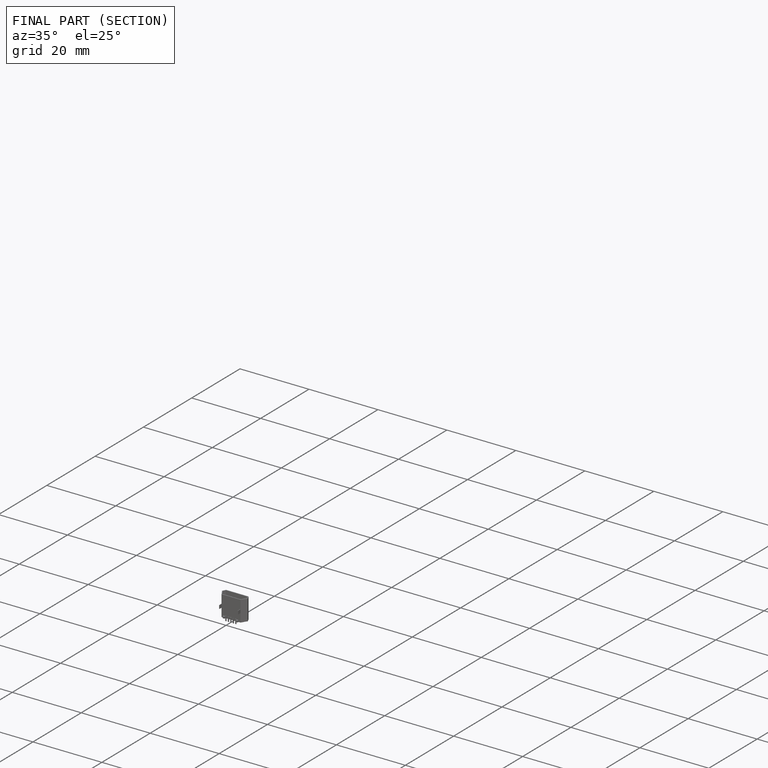
[diagram: finished part — half-section view (interior)]
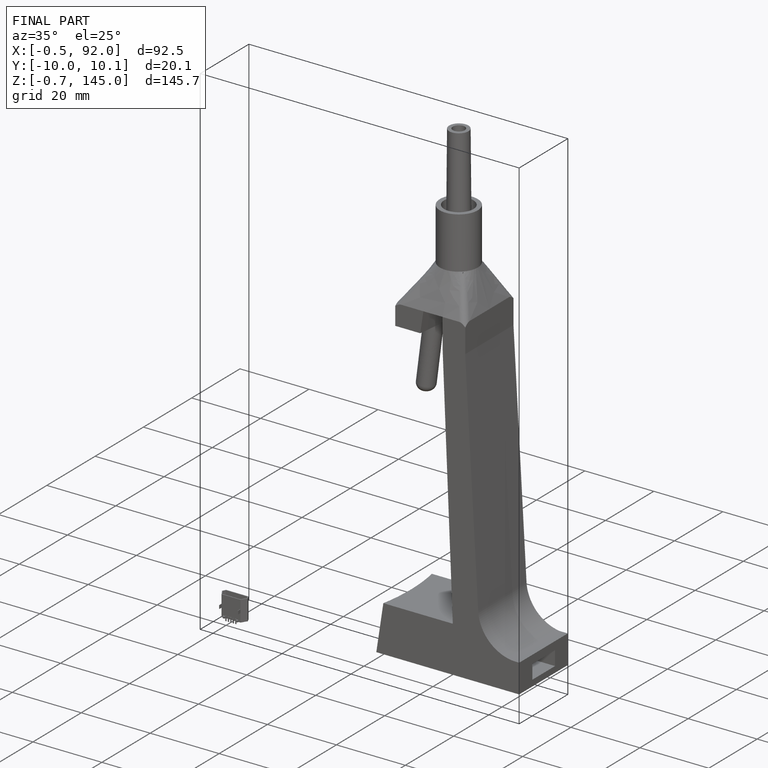
[diagram: finished part — iso view with bounding-box wireframe]
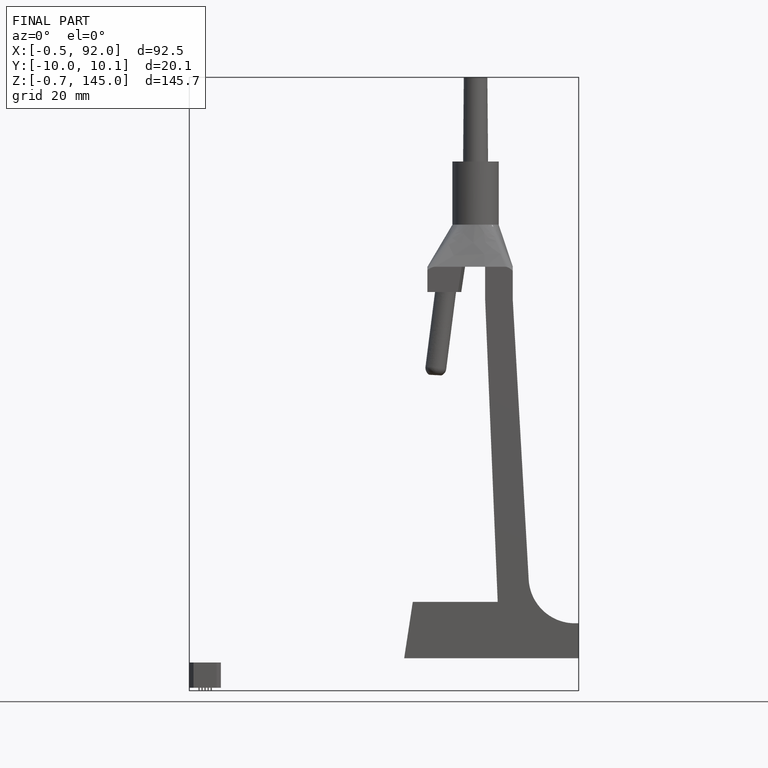
[diagram: finished part — front view with bounding-box wireframe]
